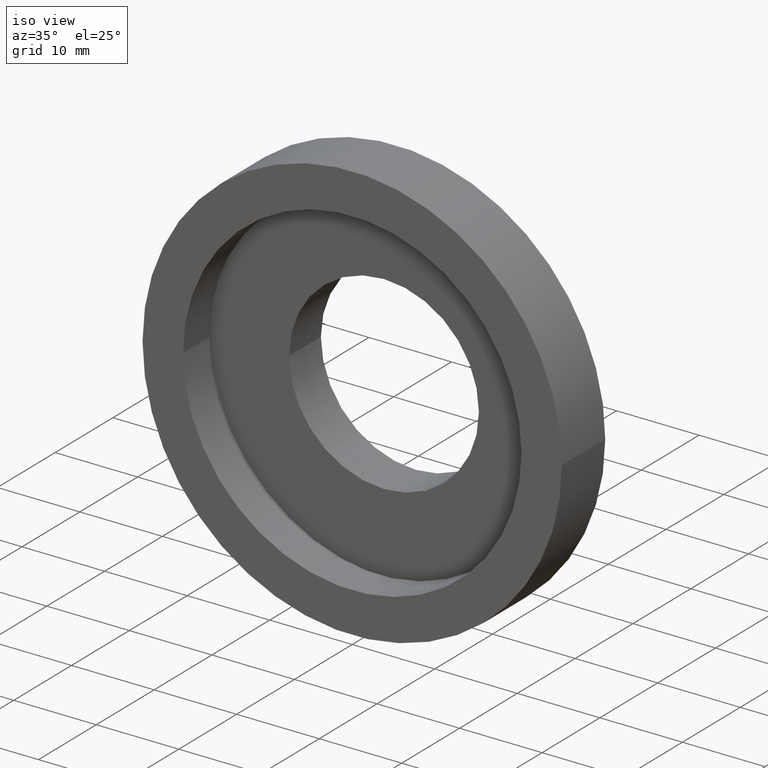
[diagram: clean part render]
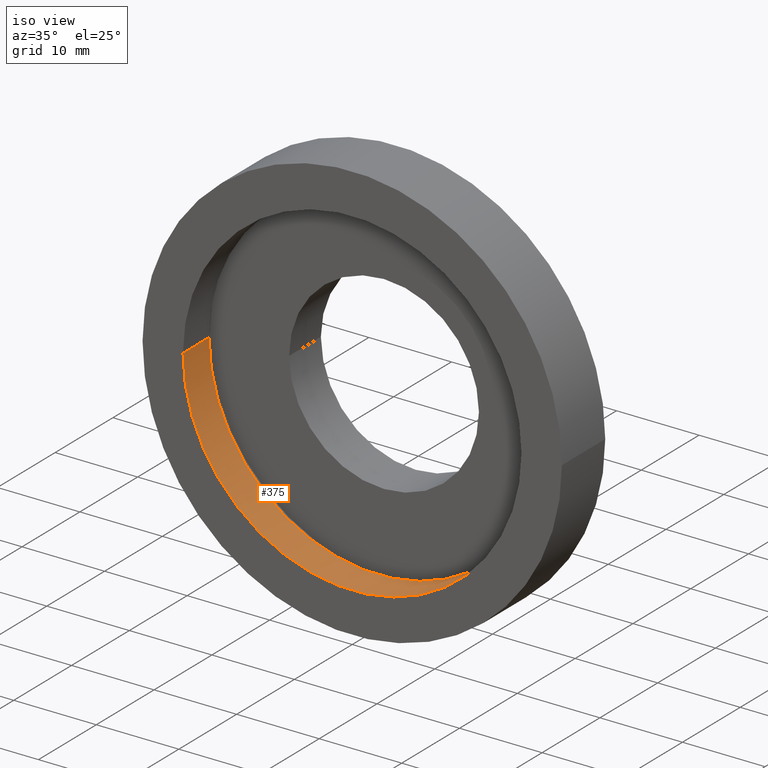
[diagram: same view with one face highlighted and labeled with its STEP entity id]
A machine part, iso view. The second image highlights one B-rep face of the part: STEP entity #375.
In plain terms, the highlighted cylindrical surface (partial cylindrical patch) has radius 20.5 mm, axis along (-0, 1, -0).
Its self-contained STEP definition (entity closure, byte-faithful):
#7 = CARTESIAN_POINT ( 'NONE',  ( -20.50000000000000400, 16.88601823708207300, 0.0000000000000000000 ) ) ;
#9 = CIRCLE ( 'NONE', #412, 20.50000000000000400 ) ;
#25 = VERTEX_POINT ( 'NONE', #314 ) ;
#64 = VERTEX_POINT ( 'NONE', #170 ) ;
#92 = CARTESIAN_POINT ( 'NONE',  ( 1.516849758822328100E-015, 4.499999999999999100, 0.0000000000000000000 ) ) ;
#110 = VERTEX_POINT ( 'NONE', #565 ) ;
#140 = DIRECTION ( 'NONE',  ( -1.224646799147351000E-016, 1.000000000000000000, -0.0000000000000000000 ) ) ;
#155 = ORIENTED_EDGE ( 'NONE', *, *, #308, .T. ) ;
#167 = VERTEX_POINT ( 'NONE', #216 ) ;
#169 = CARTESIAN_POINT ( 'NONE',  ( 2.067940818438636500E-015, -3.469446951953614200E-015, 0.0000000000000000000 ) ) ;
#170 = CARTESIAN_POINT ( 'NONE',  ( 20.50000000000000400, -9.589210137015444400E-016, 2.510525938252074500E-015 ) ) ;
#182 = DIRECTION ( 'NONE',  ( -1.224646799147351000E-016, 1.000000000000000000, -0.0000000000000000000 ) ) ;
#216 = CARTESIAN_POINT ( 'NONE',  ( -20.50000000000000400, 4.499999999999996400, 0.0000000000000000000 ) ) ;
#226 = VECTOR ( 'NONE', #382, 1000.000000000000000 ) ;
#227 = CARTESIAN_POINT ( 'NONE',  ( 20.50000000000000400, 16.88601823708208000, 2.510525938252074500E-015 ) ) ;
#264 = EDGE_CURVE ( 'NONE', #110, #167, #9, .T. ) ;
#295 = EDGE_CURVE ( 'NONE', #25, #167, #318, .T. ) ;
#306 = ORIENTED_EDGE ( 'NONE', *, *, #605, .F. ) ;
#308 = EDGE_CURVE ( 'NONE', #64, #110, #351, .T. ) ;
#314 = CARTESIAN_POINT ( 'NONE',  ( -20.49999999999999600, -5.979972890205683900E-015, 0.0000000000000000000 ) ) ;
#318 = LINE ( 'NONE', #7, #226 ) ;
#343 = FACE_OUTER_BOUND ( 'NONE', #381, .T. ) ;
#351 = LINE ( 'NONE', #227, #568 ) ;
#353 = DIRECTION ( 'NONE',  ( -1.224646799147351000E-016, 1.000000000000000000, -0.0000000000000000000 ) ) ;
#367 = DIRECTION ( 'NONE',  ( -1.224646799147351000E-016, 1.000000000000000000, -0.0000000000000000000 ) ) ;
#375 = ADVANCED_FACE ( 'NONE', ( #343 ), #441, .F. ) ;
#379 = CIRCLE ( 'NONE', #600, 20.50000000000000000 ) ;
#380 = DIRECTION ( 'NONE',  ( -1.000000000000000000, -1.224646799147351200E-016, 0.0000000000000000000 ) ) ;
#381 = EDGE_LOOP ( 'NONE', ( #306, #155, #389, #454 ) ) ;
#382 = DIRECTION ( 'NONE',  ( -1.224646799147351000E-016, 1.000000000000000000, -0.0000000000000000000 ) ) ;
#389 = ORIENTED_EDGE ( 'NONE', *, *, #264, .T. ) ;
#412 = AXIS2_PLACEMENT_3D ( 'NONE', #92, #182, #542 ) ;
#441 = CYLINDRICAL_SURFACE ( 'NONE', #586, 20.50000000000000400 ) ;
#450 = DIRECTION ( 'NONE',  ( -1.000000000000000000, -1.692413147294445700E-016, 0.0000000000000000000 ) ) ;
#454 = ORIENTED_EDGE ( 'NONE', *, *, #295, .F. ) ;
#457 = CARTESIAN_POINT ( 'NONE',  ( 0.0000000000000000000, 16.88601823708207700, 0.0000000000000000000 ) ) ;
#542 = DIRECTION ( 'NONE',  ( -1.000000000000000000, -1.269309860470834200E-016, 0.0000000000000000000 ) ) ;
#565 = CARTESIAN_POINT ( 'NONE',  ( 20.50000000000000400, 4.500000000000001800, 2.510525938252074500E-015 ) ) ;
#568 = VECTOR ( 'NONE', #140, 1000.000000000000000 ) ;
#586 = AXIS2_PLACEMENT_3D ( 'NONE', #457, #353, #450 ) ;
#600 = AXIS2_PLACEMENT_3D ( 'NONE', #169, #367, #380 ) ;
#605 = EDGE_CURVE ( 'NONE', #64, #25, #379, .T. ) ;